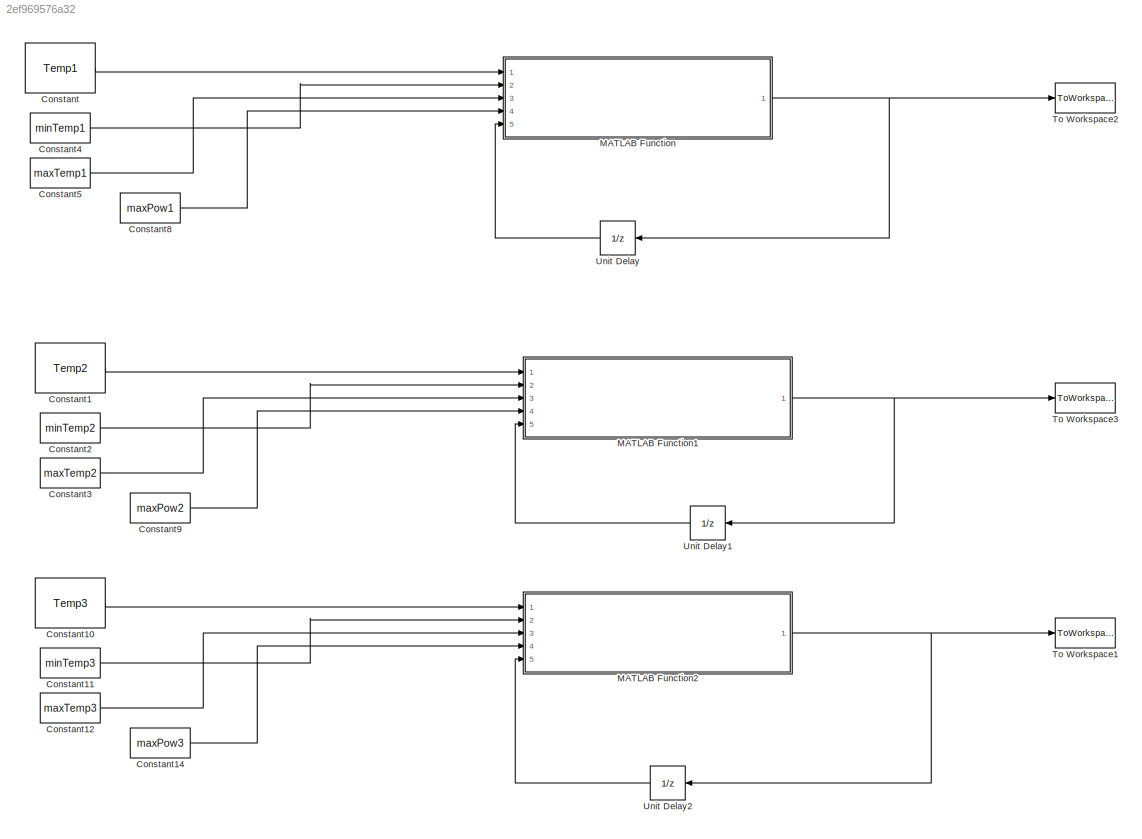
MODEL slx_2ef969576a32
KIND model
CONFIG AbsTol = auto
CONFIG EnableMultiTasking = off
CONFIG FixedStep = auto
CONFIG MaxStep = auto
CONFIG MinStep = auto
CONFIG RelTol = 1e-3
CONFIG SampleTimeConstraint = Unconstrained
CONFIG Solver = VariableStepAuto
CONFIG SolverName = VariableStepAuto
CONFIG StartTime = 0.0
CONFIG StopTime = 10.0
BLOCK [Constant] Constant
  Value = Temp1
BLOCK [Constant] Constant1
  Value = Temp2
BLOCK [Constant] Constant10
  Value = Temp3
BLOCK [Constant] Constant11
  Value = minTemp3
BLOCK [Constant] Constant12
  Value = maxTemp3
BLOCK [Constant] Constant14
  Value = maxPow3
BLOCK [Constant] Constant2
  Value = minTemp2
BLOCK [Constant] Constant3
  Value = maxTemp2
BLOCK [Constant] Constant4
  Value = minTemp1
BLOCK [Constant] Constant5
  Value = maxTemp1
BLOCK [Constant] Constant8
  Value = maxPow1
BLOCK [Constant] Constant9
  Value = maxPow2
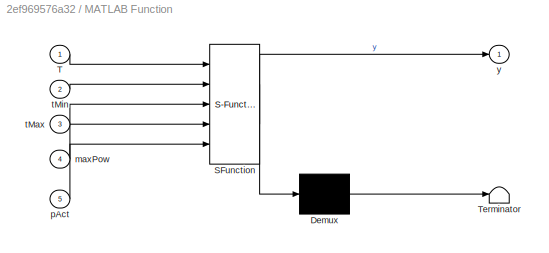
BLOCK [SubSystem] MATLAB Function
  ErrorFcn = Stateflow.Translate.translate
  PermitHierarchicalResolution = ExplicitOnly
  Ports = [5, 1]
  RequestExecContextInheritance = off
  SFBlockType = MATLAB Function
  TreatAsAtomicUnit = on
BLOCK [Demux] MATLAB Function/ Demux 
  Outputs = 1
  Ports = [1, 1]
BLOCK [S-Function] MATLAB Function/ SFunction 
  EnableBusSupport = off
  FunctionName = sf_sfun
  PortCounts = [5 2]
  Ports = [5, 2]
  SFcnIsStateOwnerBlock = off
  SFunctionDeploymentMode = off
  Tag = Stateflow S-Function 2
BLOCK [Terminator] MATLAB Function/ Terminator 
BLOCK [Inport] MATLAB Function/T
  IconDisplay = Port number
BLOCK [Inport] MATLAB Function/maxPow
  IconDisplay = Port number
  Port = 4
BLOCK [Inport] MATLAB Function/pAct
  IconDisplay = Port number
  Port = 5
BLOCK [Inport] MATLAB Function/tMax
  IconDisplay = Port number
  Port = 3
BLOCK [Inport] MATLAB Function/tMin
  IconDisplay = Port number
  Port = 2
BLOCK [Outport] MATLAB Function/y
  IconDisplay = Port number
  VectorParamsAs1DForOutWhenUnconnected = off
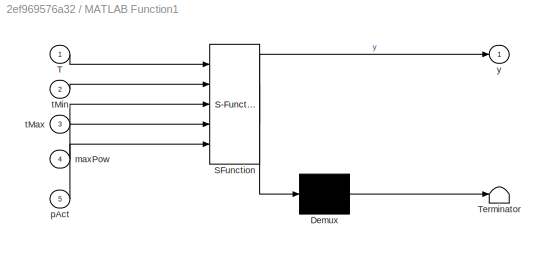
BLOCK [SubSystem] MATLAB Function1
  ErrorFcn = Stateflow.Translate.translate
  PermitHierarchicalResolution = ExplicitOnly
  Ports = [5, 1]
  RequestExecContextInheritance = off
  SFBlockType = MATLAB Function
  TreatAsAtomicUnit = on
BLOCK [Demux] MATLAB Function1/ Demux 
  Outputs = 1
  Ports = [1, 1]
BLOCK [S-Function] MATLAB Function1/ SFunction 
  EnableBusSupport = off
  FunctionName = sf_sfun
  PortCounts = [5 2]
  Ports = [5, 2]
  SFcnIsStateOwnerBlock = off
  SFunctionDeploymentMode = off
  Tag = Stateflow S-Function 1
BLOCK [Terminator] MATLAB Function1/ Terminator 
BLOCK [Inport] MATLAB Function1/T
  IconDisplay = Port number
BLOCK [Inport] MATLAB Function1/maxPow
  IconDisplay = Port number
  Port = 4
BLOCK [Inport] MATLAB Function1/pAct
  IconDisplay = Port number
  Port = 5
BLOCK [Inport] MATLAB Function1/tMax
  IconDisplay = Port number
  Port = 3
BLOCK [Inport] MATLAB Function1/tMin
  IconDisplay = Port number
  Port = 2
BLOCK [Outport] MATLAB Function1/y
  IconDisplay = Port number
  VectorParamsAs1DForOutWhenUnconnected = off
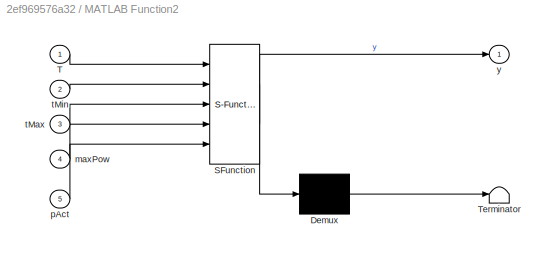
BLOCK [SubSystem] MATLAB Function2
  ErrorFcn = Stateflow.Translate.translate
  PermitHierarchicalResolution = ExplicitOnly
  Ports = [5, 1]
  RequestExecContextInheritance = off
  SFBlockType = MATLAB Function
  TreatAsAtomicUnit = on
BLOCK [Demux] MATLAB Function2/ Demux 
  Outputs = 1
  Ports = [1, 1]
BLOCK [S-Function] MATLAB Function2/ SFunction 
  EnableBusSupport = off
  FunctionName = sf_sfun
  PortCounts = [5 2]
  Ports = [5, 2]
  SFcnIsStateOwnerBlock = off
  SFunctionDeploymentMode = off
  Tag = Stateflow S-Function 3
BLOCK [Terminator] MATLAB Function2/ Terminator 
BLOCK [Inport] MATLAB Function2/T
  IconDisplay = Port number
BLOCK [Inport] MATLAB Function2/maxPow
  IconDisplay = Port number
  Port = 4
BLOCK [Inport] MATLAB Function2/pAct
  IconDisplay = Port number
  Port = 5
BLOCK [Inport] MATLAB Function2/tMax
  IconDisplay = Port number
  Port = 3
BLOCK [Inport] MATLAB Function2/tMin
  IconDisplay = Port number
  Port = 2
BLOCK [Outport] MATLAB Function2/y
  IconDisplay = Port number
  VectorParamsAs1DForOutWhenUnconnected = off
BLOCK [ToWorkspace] To Workspace1
  FixptAsFi = on
  MaxDataPoints = inf
  Ports = [1]
  SampleTime = -1
  SaveFormat = Structure With Time
  VariableName = Pow3_out
BLOCK [ToWorkspace] To Workspace2
  FixptAsFi = on
  MaxDataPoints = inf
  Ports = [1]
  SampleTime = -1
  SaveFormat = Structure With Time
  VariableName = Pow1_out
BLOCK [ToWorkspace] To Workspace3
  FixptAsFi = on
  MaxDataPoints = inf
  Ports = [1]
  SampleTime = -1
  SaveFormat = Structure With Time
  VariableName = Pow2_out
BLOCK [UnitDelay] Unit Delay
  HasFrameUpgradeWarning = on
  InitialCondition = Pow1
  SampleTime = step
BLOCK [UnitDelay] Unit Delay1
  HasFrameUpgradeWarning = on
  InitialCondition = Pow2
  SampleTime = step
BLOCK [UnitDelay] Unit Delay2
  HasFrameUpgradeWarning = on
  InitialCondition = Pow3
  SampleTime = step
LINE Constant10:1 -> MATLAB Function2:1
LINE Constant11:1 -> MATLAB Function2:2
LINE Constant12:1 -> MATLAB Function2:3
LINE Constant14:1 -> MATLAB Function2:4
LINE Constant1:1 -> MATLAB Function1:1
LINE Constant2:1 -> MATLAB Function1:2
LINE Constant3:1 -> MATLAB Function1:3
LINE Constant4:1 -> MATLAB Function:2
LINE Constant5:1 -> MATLAB Function:3
LINE Constant8:1 -> MATLAB Function:4
LINE Constant9:1 -> MATLAB Function1:4
LINE Constant:1 -> MATLAB Function:1
NET MATLAB Function1:1 -> To Workspace3:1, Unit Delay1:1
NET MATLAB Function2:1 -> To Workspace1:1, Unit Delay2:1
NET MATLAB Function:1 -> To Workspace2:1, Unit Delay:1
LINE Unit Delay1:1 -> MATLAB Function1:5
LINE Unit Delay2:1 -> MATLAB Function2:5
LINE Unit Delay:1 -> MATLAB Function:5
note: NET lines group one-source signal fan-out (src -> all destinations, sorted); 1:1 wires keep LINE
CHART MATLAB Function1 states=1 transitions=1
  STATE_LABEL 'eML_blk_kernel()'
  STATE_LABEL 'SCRIPT:\nfunction y = fcn(T, tMin, tMax, maxPow, pAct)\ndouble p;\nif T < tMin\n    p = 0;\nelseif  T > tMax\n    p = maxPow;\nelse \n    p = pAct;\nend\n\ny = p;\n'
CHART MATLAB Function states=1 transitions=1
  STATE_LABEL 'eML_blk_kernel()'
  STATE_LABEL 'SCRIPT:\nfunction y = fcn(T, tMin, tMax, maxPow, pAct)\ndouble p;\nif T < tMin\n    p = 0;\nelseif  T > tMax\n    p = maxPow;\nelse \n    p = pAct;\nend\n\ny = p;\n'
CHART MATLAB Function2 states=1 transitions=1
  STATE_LABEL 'eML_blk_kernel()'
  STATE_LABEL 'SCRIPT:\nfunction y = fcn(T, tMin, tMax, maxPow, pAct)\ndouble p;\nif T < tMin\n    p = 0;\nelseif  T > tMax\n    p = maxPow;\nelse \n    p = pAct;\nend\n\ny = p;\n'
